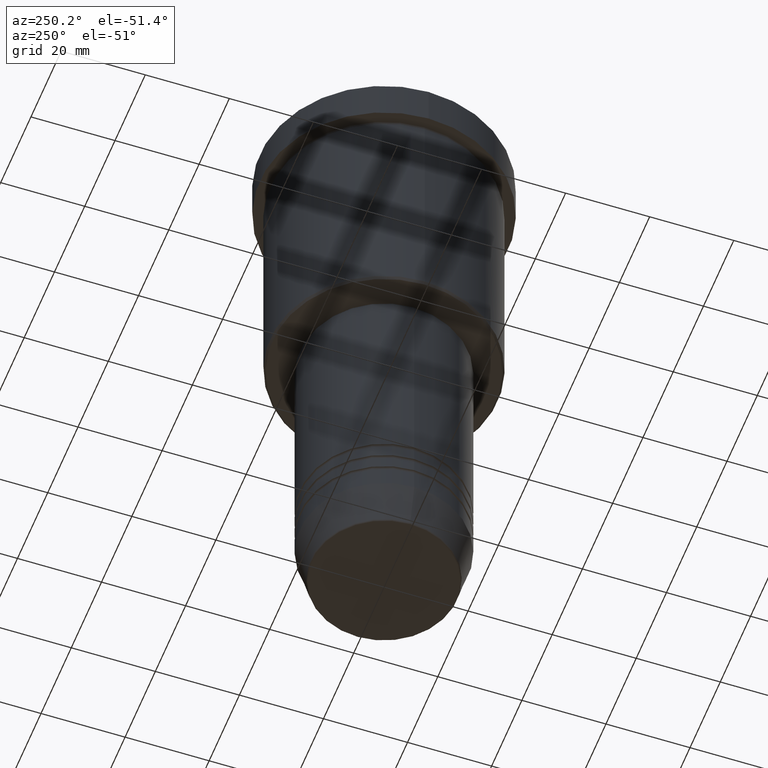
[diagram: clean part render]
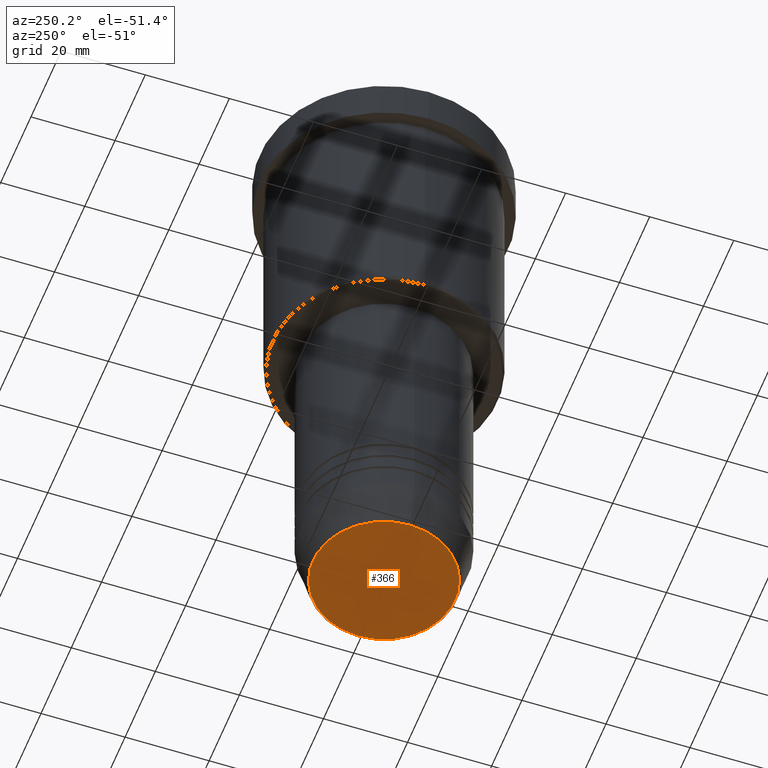
[diagram: same view with one face highlighted and labeled with its STEP entity id]
A machine part, auxiliary view. The second image highlights one B-rep face of the part: STEP entity #366.
In plain terms, the highlighted planar face has unit normal (0, -0, 1).
Its self-contained STEP definition (entity closure, byte-faithful):
#115 = PLANE ( 'NONE',  #893 ) ;
#159 = CIRCLE ( 'NONE', #509, 16.93684458169928675 ) ;
#180 = CIRCLE ( 'NONE', #1060, 16.93684458169928675 ) ;
#239 = DIRECTION ( 'NONE',  ( 1.000000000000000000, 0.000000000000000000, 0.000000000000000000 ) ) ;
#245 = DIRECTION ( 'NONE',  ( 0.000000000000000000, 0.000000000000000000, -1.000000000000000000 ) ) ;
#257 = DIRECTION ( 'NONE',  ( 1.000000000000000000, 0.000000000000000000, 0.000000000000000000 ) ) ;
#314 = CARTESIAN_POINT ( 'NONE',  ( 0.000000000000000000, 0.000000000000000000, -141.0000000000000000 ) ) ;
#317 = DIRECTION ( 'NONE',  ( 0.000000000000000000, 0.000000000000000000, -1.000000000000000000 ) ) ;
#349 = VERTEX_POINT ( 'NONE', #1090 ) ;
#366 = ADVANCED_FACE ( 'NONE', ( #659 ), #115, .F. ) ;
#500 = CARTESIAN_POINT ( 'NONE',  ( 0.000000000000000000, 0.000000000000000000, -141.0000000000000000 ) ) ;
#509 = AXIS2_PLACEMENT_3D ( 'NONE', #500, #317, #239 ) ;
#549 = EDGE_LOOP ( 'NONE', ( #871, #751 ) ) ;
#659 = FACE_OUTER_BOUND ( 'NONE', #549, .T. ) ;
#741 = EDGE_CURVE ( 'NONE', #958, #349, #159, .T. ) ;
#751 = ORIENTED_EDGE ( 'NONE', *, *, #741, .T. ) ;
#852 = DIRECTION ( 'NONE',  ( 1.000000000000000000, 0.000000000000000000, 0.000000000000000000 ) ) ;
#871 = ORIENTED_EDGE ( 'NONE', *, *, #927, .T. ) ;
#882 = CARTESIAN_POINT ( 'NONE',  ( 0.000000000000000000, 0.000000000000000000, -141.0000000000000000 ) ) ;
#893 = AXIS2_PLACEMENT_3D ( 'NONE', #314, #1024, #852 ) ;
#927 = EDGE_CURVE ( 'NONE', #349, #958, #180, .T. ) ;
#958 = VERTEX_POINT ( 'NONE', #1067 ) ;
#1024 = DIRECTION ( 'NONE',  ( 0.000000000000000000, -0.000000000000000000, 1.000000000000000000 ) ) ;
#1060 = AXIS2_PLACEMENT_3D ( 'NONE', #882, #245, #257 ) ;
#1067 = CARTESIAN_POINT ( 'NONE',  ( -16.93684458169928675, 2.103738199747889592E-15, -141.0000000000000000 ) ) ;
#1090 = CARTESIAN_POINT ( 'NONE',  ( 16.93684458169928675, 0.000000000000000000, -141.0000000000000000 ) ) ;